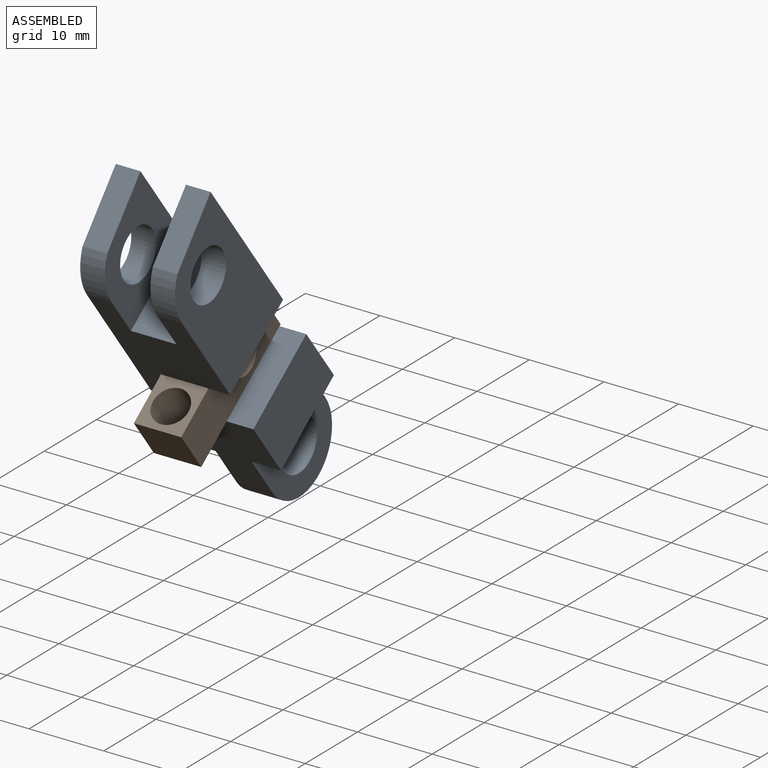
[diagram: assembled view]
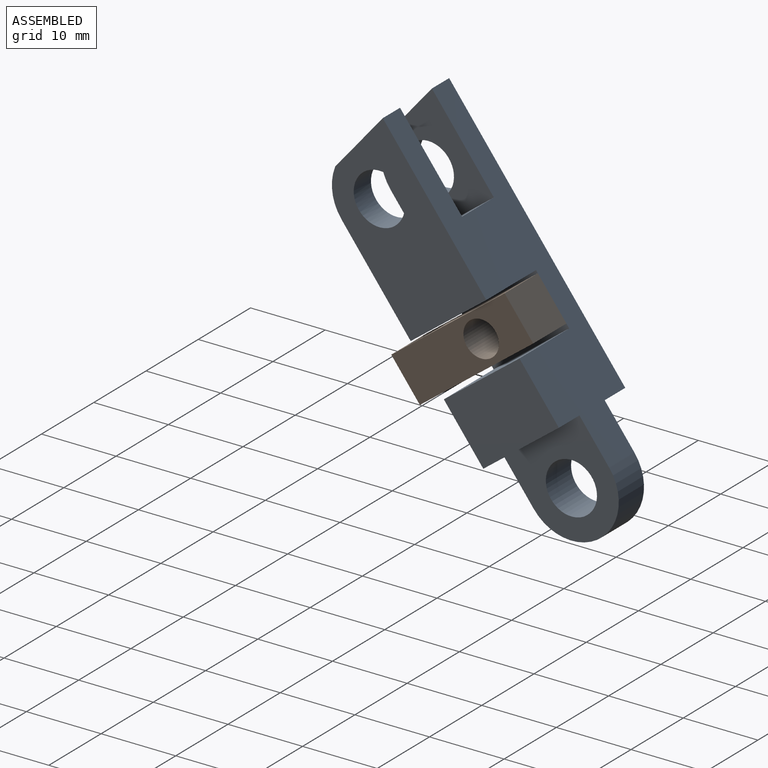
[diagram: assembled view, second angle]
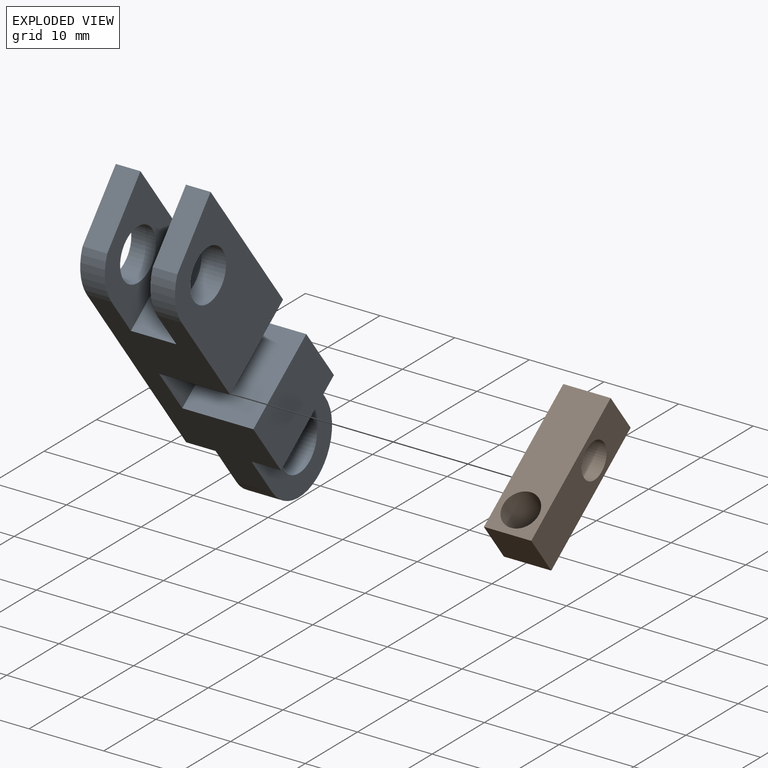
[diagram: exploded view]
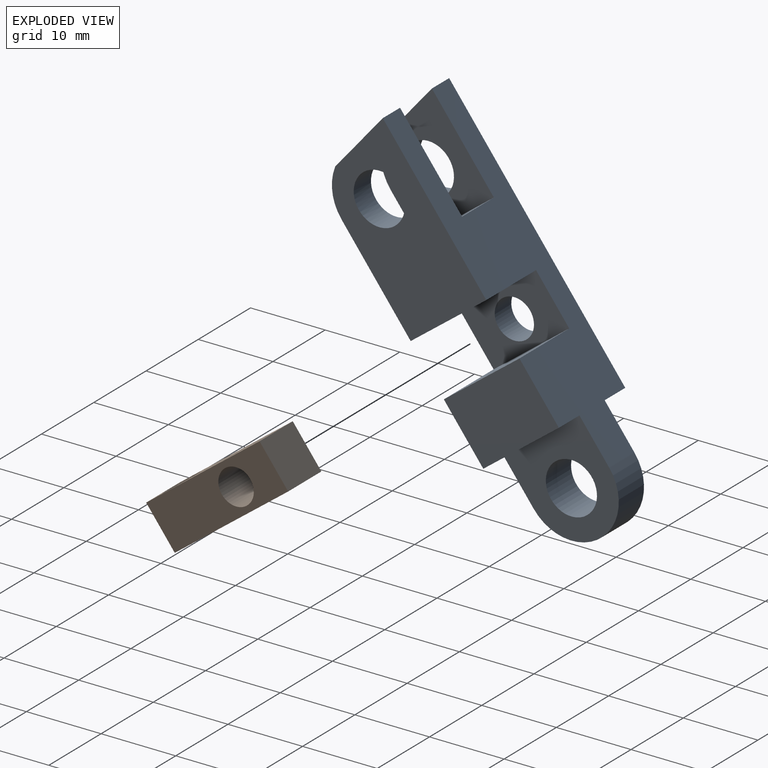
[diagram: exploded view, second angle]
ASSEMBLY  parts=2 mates=2
PART A: 24 faces, bbox 12.7x52.1x12.7 mm
  f0: plane 12.7x8.76mm, normal (1,0,0), area 111.3mm2, adj f1,f3,f12,f20
  f1: plane 45.72x12.7mm, normal (0,0,1), area 374.6mm2, adj f0,f2,f6,f7,f9,f11,f12,f13
  f2: cylinder r=6.35mm len=12.7mm, axis (-1,0,0), area 96.3mm2, adj f1,f3,f13,f15
  f3: plane 38.1x12.7mm, normal (0,0,-1), area 324.2mm2, adj f0,f2,f4,f5,f9,f11,f12,f13
  f4: cylinder r=6.35mm len=5.44mm, axis (-1,0,0), area 21.6mm2, adj f3,f6,f11,f18
  f5: cylinder r=6.35mm len=5.44mm, axis (-1,0,0), area 21.6mm2, adj f3,f7,f9,f17
  f6: plane 9.63x3.3mm, normal (0,-0.98,-0.22), area 32.6mm2, adj f1,f4,f11,f18
  f7: plane 9.63x3.3mm, normal (0,-0.98,-0.22), area 32.6mm2, adj f1,f5,f9,f17
  f8: cylinder r=3.43mm len=6.86mm, axis (-1,0,0), area 71.1mm2, adj f9,f17
  f9: plane 39.12x12.7mm, normal (-1,0,0), area 415.9mm2, adj f1,f3,f5,f7,f8,f14,f23
  f10: cylinder r=3.43mm len=6.86mm, axis (-1,0,0), area 71.1mm2, adj f11,f18
  f11: plane 22.99x12.7mm, normal (1,0,0), area 232.9mm2, adj f1,f3,f4,f6,f10,f21
  f12: plane 12.7x3.94mm, normal (0,1,0), area 50mm2, adj f0,f1,f3,f13
  f13: plane 12.95x12.7mm, normal (1,0,0), area 110.3mm2, adj f1,f2,f3,f12,f19
  f14: plane 12.7x3.94mm, normal (0,1,0), area 50mm2, adj f1,f3,f9,f15
  f15: plane 12.95x12.7mm, normal (-1,0,0), area 110.3mm2, adj f1,f2,f3,f14,f19
  f16: plane 12.7x6.1mm, normal (0,-1,0), area 77.4mm2, adj f1,f3,f17,f18
  f17: plane 13.77x12.7mm, normal (1,0,0), area 115.8mm2, adj f1,f3,f5,f7,f8,f16
  f18: plane 13.77x12.7mm, normal (-1,0,0), area 115.8mm2, adj f1,f3,f4,f6,f10,f16
  f19: cylinder r=3.43mm len=6.86mm, axis (-1,0,0), area 104mm2, adj f13,f15
  f20: plane 12.7x9.53mm, normal (0,-1,0), area 121mm2, adj f0,f1,f3,f22
  f21: plane 12.7x9.53mm, normal (0,1,0), area 121mm2, adj f1,f3,f11,f22
  f22: plane 12.7x7.37mm, normal (1,0,0), area 71.7mm2, adj f1,f3,f20,f21,f23
  f23: cylinder r=2.64mm len=5.27mm, axis (1,0,0), area 52.6mm2, adj f9,f22
PART B: 8 faces, bbox 6.4x6.4x19.1 mm
  f0: plane 6.35x6.35mm, normal (0,0,1), area 40.3mm2, adj f1,f4,f5,f6
  f1: plane 19.05x6.35mm, normal (0,-1,0), area 103.2mm2, adj f0,f2,f5,f6,f7
  f2: plane 6.35x6.35mm, normal (0,0,-1), area 40.3mm2, adj f1,f4,f5,f6
  f3: cylinder r=2.38mm len=6.35mm, axis (-1,0,0), area 95mm2, adj f5,f6
  f4: plane 19.05x6.35mm, normal (0,1,0), area 103.2mm2, adj f0,f2,f5,f6,f7
  f5: plane 19.05x6.35mm, normal (1,0,0), area 103.2mm2, adj f0,f1,f2,f3,f4
  f6: plane 19.05x6.35mm, normal (-1,0,0), area 103.2mm2, adj f0,f1,f2,f3,f4
  f7: cylinder r=2.38mm len=6.35mm, axis (0,1,0), area 95mm2, adj f1,f4
PLACE A rot(axis=(-1,0,0),52.9deg) t=(22.13,22.76,28.53)mm
PLACE B rot(axis=(1,0,0),127.1deg) t=(25.31,50.06,13.48)mm
MATE revolute A.f23 <-> B.f3  axis (1,0,0) through (25.31,43.08,12.19)mm
MATE planar A.f1 <-> B.f2  axis (0,0.8,0.6) through (30.07,45.99,18.87)mm
